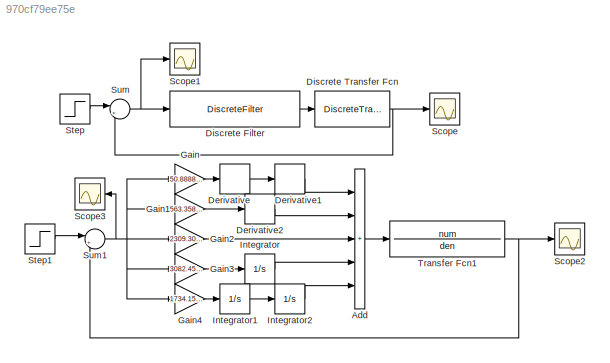
MODEL slx_970cf79ee75e
KIND model
CONFIG AbsTol = auto
CONFIG EnableMultiTasking = off
CONFIG FixedStep = auto
CONFIG MaxStep = auto
CONFIG MinStep = auto
CONFIG RelTol = 1e-3
CONFIG SampleTimeConstraint = Unconstrained
CONFIG SolverName = VariableStepAuto
CONFIG StartTime = 0.0
CONFIG StopTime = 10.0
BLOCK [Sum] Add
  IconShape = rectangular
  Inputs = +++++
  Ports = [5, 1]
BLOCK [Derivative] Derivative
BLOCK [Derivative] Derivative1
BLOCK [Derivative] Derivative2
BLOCK [DiscreteFilter] Discrete Filter
  Denominator = [1,0,-2,0,1]
  InputPortMap = u0
  Numerator = [136967.323218145,-486182.843645550,646802.145617491,-382365.160859972,84791.5410543520]
  Ports = [1, 1]
BLOCK [DiscreteTransferFcn] Discrete Transfer Fcn
  Denominator = [1,-2.8711,2.7494,-0.8782]
  InputPortMap = u0
  Numerator = [4.756e-6,1.4268e-5,1.42168e-5,4.75e-6]
  Ports = [1, 1]
BLOCK [Gain] Gain
  Gain = 50.8888889
BLOCK [Gain] Gain1
  Gain = 563.358025
BLOCK [Gain] Gain2
  Gain = 2309.3059
BLOCK [Gain] Gain3
  Gain = 3082.45694
BLOCK [Gain] Gain4
  Gain = 1734.15299
BLOCK [Integrator] Integrator
  Ports = [1, 1]
BLOCK [Integrator] Integrator1
  Ports = [1, 1]
BLOCK [Integrator] Integrator2
  Ports = [1, 1]
BLOCK [Scope] Scope
  Floating = off
  NumInputPorts = 1
  Ports = [1]
  ScopeSpecificationString = Simulink.scopes.TimeScopeBlockCfg('CurrentConfiguration', extmgr.ConfigurationSet(extmgr.Configuration('Core','General UI',true),extmgr.Configuration('Core','Source UI',true),extmgr.Configuration('Sources','WiredSimulink',true),extmgr.Configuration('Visuals','Time Domain',true,'SerializedDisplays',{struct('MinYLimReal','0.29363','MaxYLimReal','1.30191','YLabelReal','','MinYLimMag','0.29363','MaxYL...<+1365ch>
BLOCK [Scope] Scope1
  Floating = off
  NumInputPorts = 1
  Ports = [1]
  ScopeSpecificationString = Simulink.scopes.TimeScopeBlockCfg('CurrentConfiguration', extmgr.ConfigurationSet(extmgr.Configuration('Core','General UI',true),extmgr.Configuration('Core','Source UI',true),extmgr.Configuration('Sources','WiredSimulink',true,'DataLoggingVariableName','ScopeData1'),extmgr.Configuration('Visuals','Time Domain',true,'SerializedDisplays',{struct('MinYLimReal','-0.30191','MaxYLimReal','0.70637','YLab...<+1362ch>
BLOCK [Scope] Scope2
  Floating = off
  NumInputPorts = 1
  Ports = [1]
  ScopeSpecificationString = Simulink.scopes.TimeScopeBlockCfg('CurrentConfiguration', extmgr.ConfigurationSet(extmgr.Configuration('Core','General UI',true),extmgr.Configuration('Core','Source UI',true),extmgr.Configuration('Sources','WiredSimulink',true,'DataLoggingVariableName','ScopeData2'),extmgr.Configuration('Visuals','Time Domain',true,'SerializedDisplays',{struct('MinYLimReal','-0.18022','MaxYLimReal','1.62198','YLab...<+1372ch>
BLOCK [Scope] Scope3
  Floating = off
  NameLocation = top
  NumInputPorts = 1
  Ports = [1]
  ScopeSpecificationString = Simulink.scopes.TimeScopeBlockCfg('CurrentConfiguration', extmgr.ConfigurationSet(extmgr.Configuration('Core','General UI',true),extmgr.Configuration('Core','Source UI',true),extmgr.Configuration('Sources','WiredSimulink',true,'DataLoggingVariableName','ScopeData3'),extmgr.Configuration('Visuals','Time Domain',true,'SerializedDisplays',{struct('MinYLimReal','-0.62198','MaxYLimReal','1.18022','YLab...<+1363ch>
BLOCK [Step] Step
  SampleTime = 0
  Time = 0
BLOCK [Step] Step1
  SampleTime = 0
  Time = 0
BLOCK [Sum] Sum
  Inputs = |+-
  Ports = [2, 1]
BLOCK [Sum] Sum1
  Inputs = |+-
  Ports = [2, 1]
BLOCK [TransferFcn] Transfer Fcn1
  Denominator = den
  Numerator = num
LINE Add:1 -> Transfer Fcn1:1
LINE Derivative1:1 -> Add:1
LINE Derivative2:1 -> Add:2
LINE Derivative:1 -> Derivative1:1
LINE Discrete Filter:1 -> Discrete Transfer Fcn:1
NET Discrete Transfer Fcn:1 -> Scope:1, Sum:2
LINE Gain1:1 -> Derivative2:1
LINE Gain2:1 -> Add:3
LINE Gain3:1 -> Integrator:1
LINE Gain4:1 -> Integrator1:1
LINE Gain:1 -> Derivative:1
LINE Integrator1:1 -> Integrator2:1
LINE Integrator2:1 -> Add:5
LINE Integrator:1 -> Add:4
LINE Step1:1 -> Sum1:1
LINE Step:1 -> Sum:1
NET Sum1:1 -> Gain1:1, Gain2:1, Gain3:1, Gain4:1, Gain:1, Scope3:1
NET Sum:1 -> Discrete Filter:1, Scope1:1
NET Transfer Fcn1:1 -> Scope2:1, Sum1:2
note: NET lines group one-source signal fan-out (src -> all destinations, sorted); 1:1 wires keep LINE
